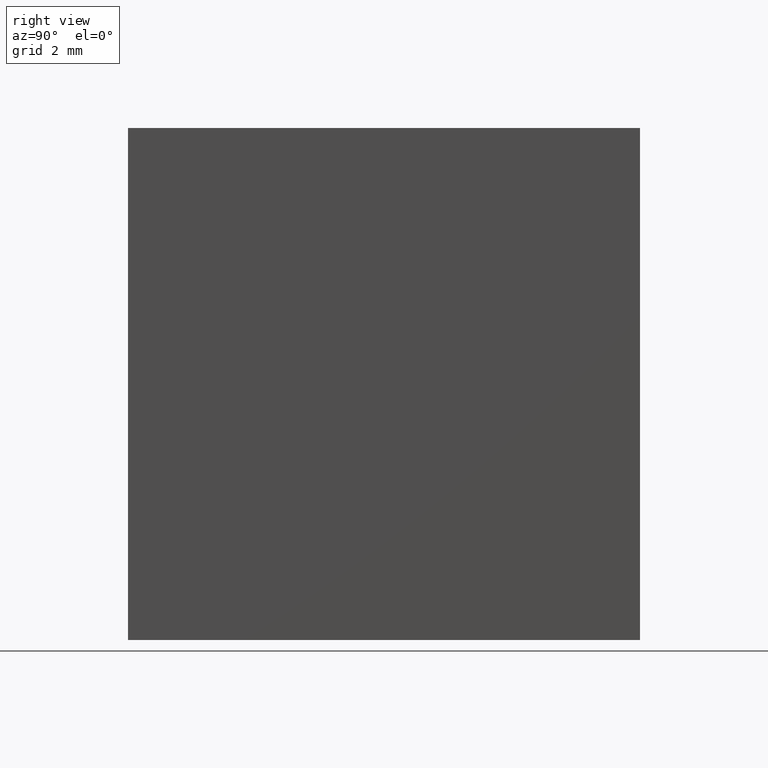
[diagram: clean part render]
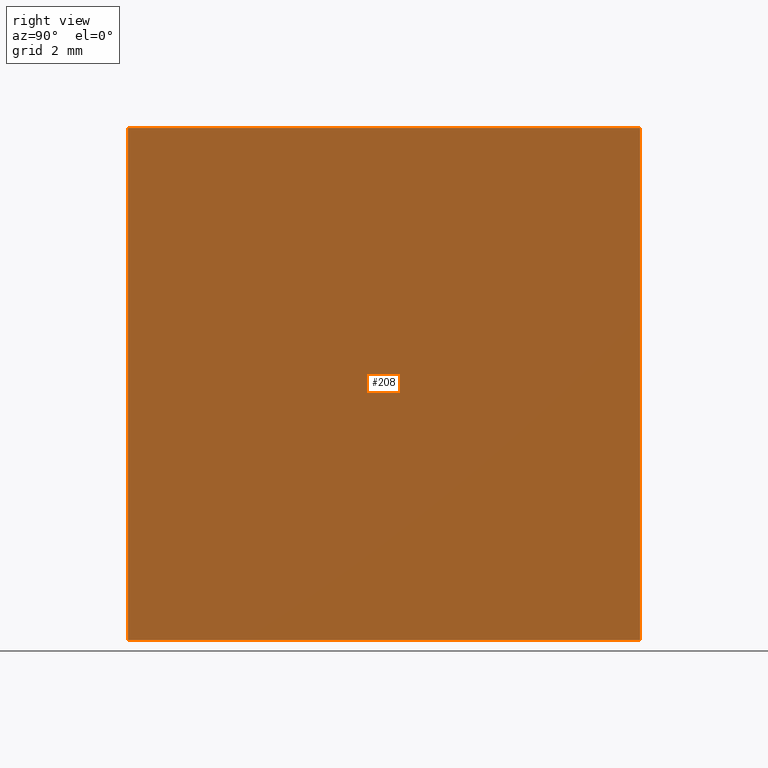
[diagram: same view with one face highlighted and labeled with its STEP entity id]
A machine part, right view. The second image highlights one B-rep face of the part: STEP entity #208.
In plain terms, the highlighted planar face has unit normal (-1, 0, 0).
Its self-contained STEP definition (entity closure, byte-faithful):
#4 = AXIS2_PLACEMENT_3D ( 'NONE', #148, #101, #126 ) ;
#15 = FACE_OUTER_BOUND ( 'NONE', #123, .T. ) ;
#18 = CARTESIAN_POINT ( 'NONE',  ( -514.7758121274639507, 5.000000000000000888, 0.000000000000000000 ) ) ;
#26 = VECTOR ( 'NONE', #216, 1000.000000000000000 ) ;
#29 = LINE ( 'NONE', #256, #26 ) ;
#44 = ORIENTED_EDGE ( 'NONE', *, *, #232, .T. ) ;
#57 = PLANE ( 'NONE',  #4 ) ;
#63 = VECTOR ( 'NONE', #84, 1000.000000000000000 ) ;
#84 = DIRECTION ( 'NONE',  ( -0.000000000000000000, -0.000000000000000000, -1.000000000000000000 ) ) ;
#94 = ORIENTED_EDGE ( 'NONE', *, *, #155, .T. ) ;
#101 = DIRECTION ( 'NONE',  ( -1.000000000000000000, 0.000000000000000000, 0.000000000000000000 ) ) ;
#102 = CARTESIAN_POINT ( 'NONE',  ( -514.7758121274639507, 5.000000000000000888, 10.00000000000000000 ) ) ;
#104 = EDGE_CURVE ( 'NONE', #190, #221, #29, .T. ) ;
#115 = VERTEX_POINT ( 'NONE', #120 ) ;
#120 = CARTESIAN_POINT ( 'NONE',  ( -514.7758121274639507, 5.000000000000000888, 0.000000000000000000 ) ) ;
#123 = EDGE_LOOP ( 'NONE', ( #94, #158, #260, #44 ) ) ;
#125 = CARTESIAN_POINT ( 'NONE',  ( -514.7758121274639507, 5.000000000000000888, 10.00000000000000000 ) ) ;
#126 = DIRECTION ( 'NONE',  ( 0.000000000000000000, 0.000000000000000000, 1.000000000000000000 ) ) ;
#129 = CARTESIAN_POINT ( 'NONE',  ( -514.7758121274639507, -5.000000000000000888, 10.00000000000000000 ) ) ;
#131 = VECTOR ( 'NONE', #147, 1000.000000000000000 ) ;
#147 = DIRECTION ( 'NONE',  ( -0.000000000000000000, 1.000000000000000000, -0.000000000000000000 ) ) ;
#148 = CARTESIAN_POINT ( 'NONE',  ( -514.7758121274639507, 5.000000000000000888, 10.00000000000000000 ) ) ;
#155 = EDGE_CURVE ( 'NONE', #235, #115, #243, .T. ) ;
#158 = ORIENTED_EDGE ( 'NONE', *, *, #220, .F. ) ;
#190 = VERTEX_POINT ( 'NONE', #229 ) ;
#207 = CARTESIAN_POINT ( 'NONE',  ( -514.7758121274639507, -5.000000000000000888, 0.000000000000000000 ) ) ;
#208 = ADVANCED_FACE ( 'NONE', ( #15 ), #57, .F. ) ;
#216 = DIRECTION ( 'NONE',  ( -0.000000000000000000, 1.000000000000000000, -0.000000000000000000 ) ) ;
#220 = EDGE_CURVE ( 'NONE', #221, #115, #248, .T. ) ;
#221 = VERTEX_POINT ( 'NONE', #102 ) ;
#225 = LINE ( 'NONE', #129, #63 ) ;
#228 = DIRECTION ( 'NONE',  ( -0.000000000000000000, -0.000000000000000000, -1.000000000000000000 ) ) ;
#229 = CARTESIAN_POINT ( 'NONE',  ( -514.7758121274639507, -5.000000000000000888, 10.00000000000000000 ) ) ;
#232 = EDGE_CURVE ( 'NONE', #190, #235, #225, .T. ) ;
#235 = VERTEX_POINT ( 'NONE', #207 ) ;
#238 = VECTOR ( 'NONE', #228, 1000.000000000000000 ) ;
#243 = LINE ( 'NONE', #18, #131 ) ;
#248 = LINE ( 'NONE', #125, #238 ) ;
#256 = CARTESIAN_POINT ( 'NONE',  ( -514.7758121274639507, 5.000000000000000888, 10.00000000000000000 ) ) ;
#260 = ORIENTED_EDGE ( 'NONE', *, *, #104, .F. ) ;